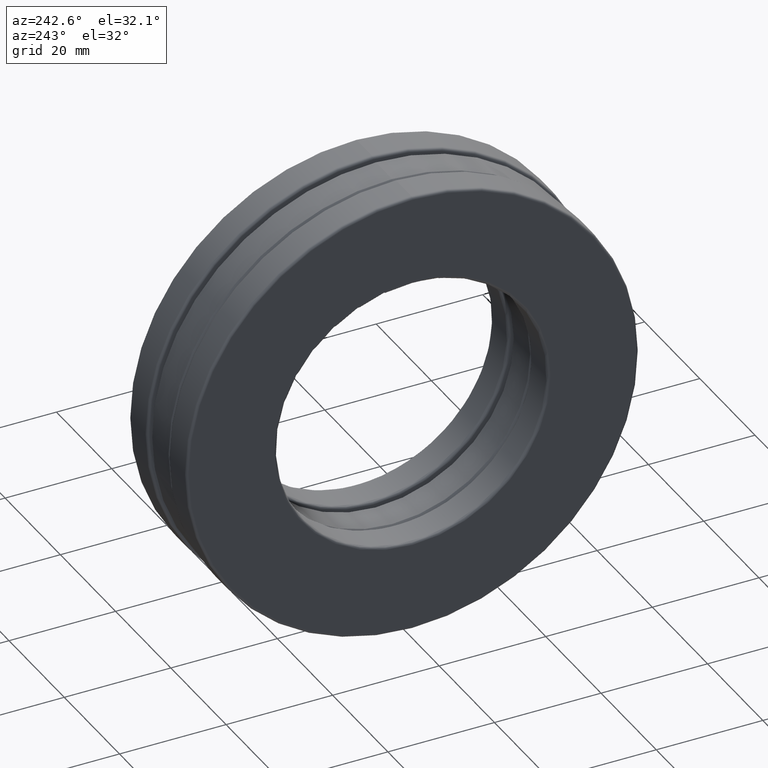
[diagram: clean part render]
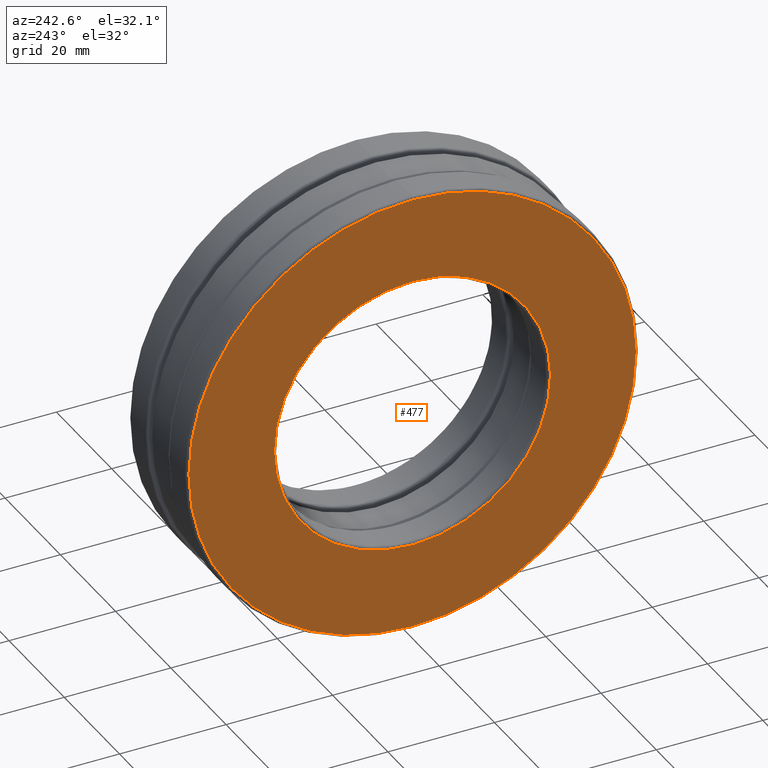
[diagram: same view with one face highlighted and labeled with its STEP entity id]
A machine part, auxiliary view. The second image highlights one B-rep face of the part: STEP entity #477.
In plain terms, the highlighted planar face has unit normal (1, 0, 0).
Its self-contained STEP definition (entity closure, byte-faithful):
#102 = CARTESIAN_POINT ( 'NONE',  ( -0.4059999999999998600, 0.0000000000000000000, 0.0000000000000000000 ) ) ;
#153 = VERTEX_POINT ( 'NONE', #546 ) ;
#205 = CARTESIAN_POINT ( 'NONE',  ( -0.4059999999999998600, 0.0000000000000000000, 0.0000000000000000000 ) ) ;
#220 = DIRECTION ( 'NONE',  ( -1.000000000000000000, -0.0000000000000000000, -0.0000000000000000000 ) ) ;
#289 = DIRECTION ( 'NONE',  ( -1.000000000000000000, -0.0000000000000000000, -0.0000000000000000000 ) ) ;
#299 = DIRECTION ( 'NONE',  ( 0.0000000000000000000, 0.0000000000000000000, 1.000000000000000000 ) ) ;
#325 = DIRECTION ( 'NONE',  ( 1.000000000000000000, 0.0000000000000000000, 0.0000000000000000000 ) ) ;
#398 = ORIENTED_EDGE ( 'NONE', *, *, #803, .T. ) ;
#477 = ADVANCED_FACE ( 'NONE', ( #653, #552 ), #538, .F. ) ;
#512 = AXIS2_PLACEMENT_3D ( 'NONE', #205, #220, #1212 ) ;
#538 = PLANE ( 'NONE',  #829 ) ;
#546 = CARTESIAN_POINT ( 'NONE',  ( -0.4059999999999998600, 0.0000000000000000000, 1.651875000000000400 ) ) ;
#552 = FACE_OUTER_BOUND ( 'NONE', #819, .T. ) ;
#623 = CARTESIAN_POINT ( 'NONE',  ( -0.4059999999999998600, 0.0000000000000000000, 0.0000000000000000000 ) ) ;
#639 = ORIENTED_EDGE ( 'NONE', *, *, #1082, .F. ) ;
#653 = FACE_BOUND ( 'NONE', #1412, .T. ) ;
#799 = CARTESIAN_POINT ( 'NONE',  ( -0.4059999999999998600, 0.0000000000000000000, 1.020000000000000000 ) ) ;
#803 = EDGE_CURVE ( 'NONE', #153, #153, #1035, .T. ) ;
#819 = EDGE_LOOP ( 'NONE', ( #398 ) ) ;
#829 = AXIS2_PLACEMENT_3D ( 'NONE', #102, #325, #1104 ) ;
#830 = CIRCLE ( 'NONE', #1300, 1.020000000000000000 ) ;
#1035 = CIRCLE ( 'NONE', #512, 1.651875000000000400 ) ;
#1082 = EDGE_CURVE ( 'NONE', #1273, #1273, #830, .T. ) ;
#1104 = DIRECTION ( 'NONE',  ( 0.0000000000000000000, 0.0000000000000000000, -1.000000000000000000 ) ) ;
#1212 = DIRECTION ( 'NONE',  ( 0.0000000000000000000, 0.0000000000000000000, 1.000000000000000000 ) ) ;
#1273 = VERTEX_POINT ( 'NONE', #799 ) ;
#1300 = AXIS2_PLACEMENT_3D ( 'NONE', #623, #289, #299 ) ;
#1412 = EDGE_LOOP ( 'NONE', ( #639 ) ) ;